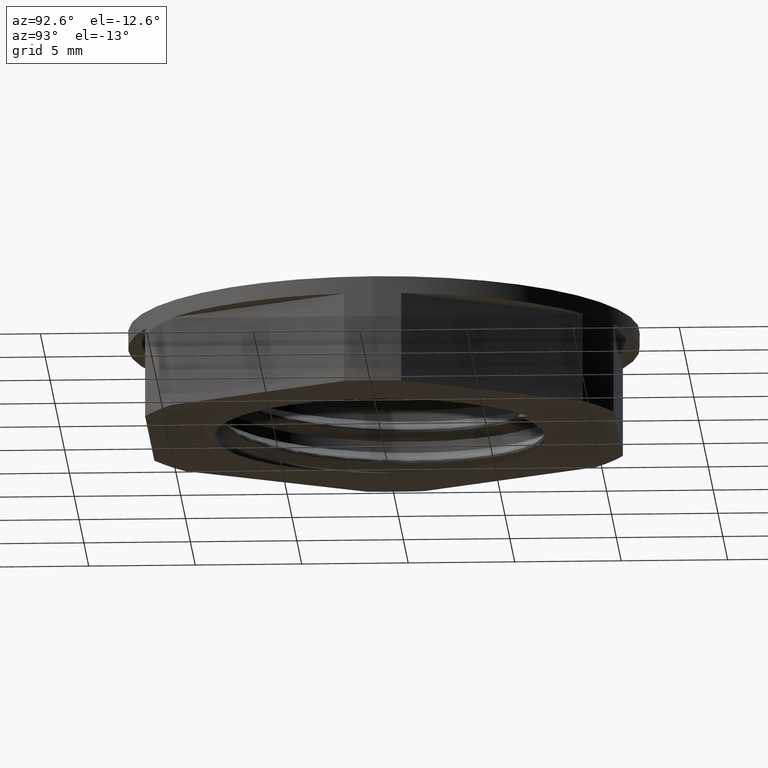
[diagram: clean part render]
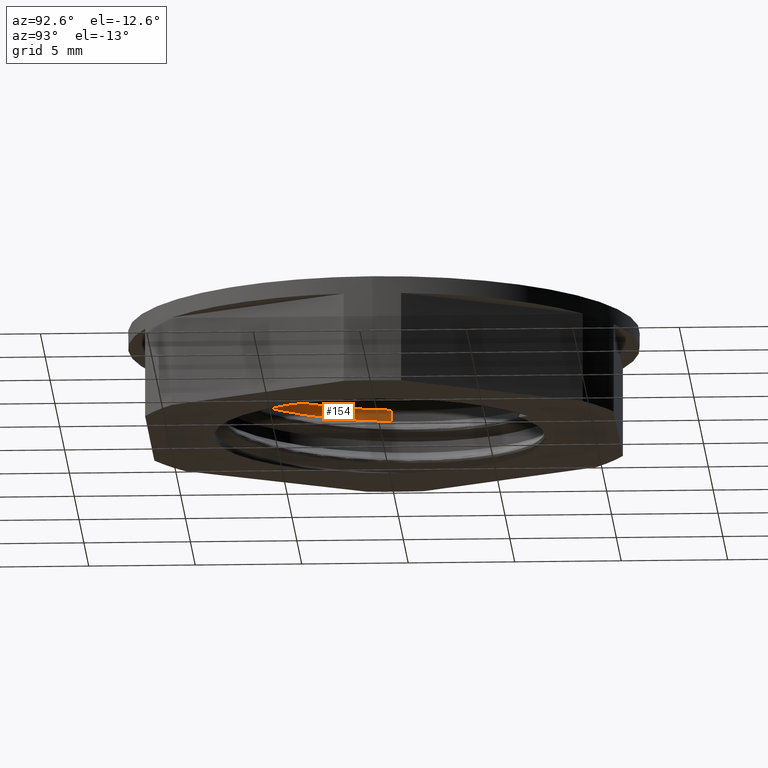
[diagram: same view with one face highlighted and labeled with its STEP entity id]
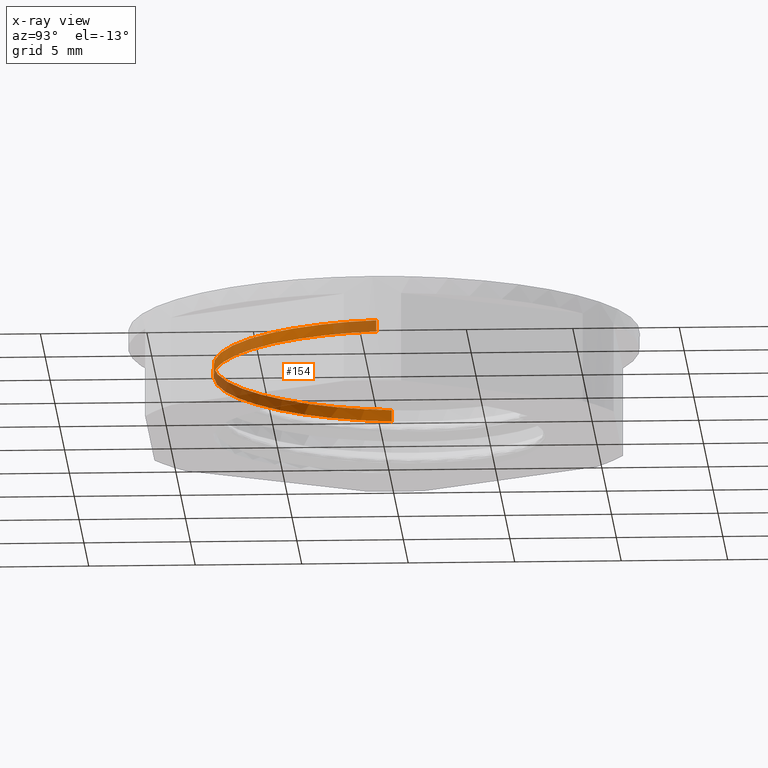
[diagram: x-ray of the same camera — body ghosted, the highlighted face saturated]
A machine part, auxiliary view. The second image highlights one B-rep face of the part: STEP entity #154.
The next image is the same camera in x-ray: the body ghosted, the highlighted face saturated — about 48% of this face is hidden behind the body in this view.
In plain terms, the highlighted cylindrical surface (partial cylindrical patch) has radius 8 mm, axis along (-0, -0, -1).
Its self-contained STEP definition (entity closure, byte-faithful):
#6 = AXIS2_PLACEMENT_3D ( 'NONE', #1061, #1052, #1059 ) ;
#7 = VECTOR ( 'NONE', #1113, 1000.000000000000000 ) ;
#34 = VECTOR ( 'NONE', #419, 1000.000000000000000 ) ;
#154 = ADVANCED_FACE ( 'NONE', ( #1053 ), #1054, .F. ) ;
#160 = EDGE_CURVE ( 'NONE', #2501, #1510, #1112, .T. ) ;
#167 = EDGE_CURVE ( 'NONE', #2504, #2501, #2532, .T. ) ;
#169 = EDGE_CURVE ( 'NONE', #1510, #1509, #2531, .T. ) ;
#173 = EDGE_CURVE ( 'NONE', #2504, #1509, #431, .T. ) ;
#343 = CARTESIAN_POINT ( 'NONE',  ( 7.999999999999998200, -7.631494539278074400E-015, 3.772517976318679800 ) ) ;
#346 = CARTESIAN_POINT ( 'NONE',  ( 7.999999999999998200, -2.143593539448982900, 3.707437213536682700 ) ) ;
#391 = CARTESIAN_POINT ( 'NONE',  ( -7.999999999999998200, 3.366835826152092000E-015, 3.022517976318681600 ) ) ;
#392 = CARTESIAN_POINT ( 'NONE',  ( 2.070552360820166800, -7.727406610312546500, 2.921896021617674100 ) ) ;
#393 = CARTESIAN_POINT ( 'NONE',  ( 6.928203230275509700, -4.000000000000000000, 3.109396021617673300 ) ) ;
#394 = CARTESIAN_POINT ( 'NONE',  ( -8.000000000000000000, -1.053219980699167800, 2.517098779880569700 ) ) ;
#395 = CARTESIAN_POINT ( 'NONE',  ( -1.130244259142797500, -8.585057479767890200, 2.828146021617674100 ) ) ;
#396 = CARTESIAN_POINT ( 'NONE',  ( 6.928203230275508800, -4.000000000000000000, 3.646791597187232900 ) ) ;
#397 = CARTESIAN_POINT ( 'NONE',  ( 5.271348980783127300, -6.869755740857204500, 3.553041597187232900 ) ) ;
#402 = CARTESIAN_POINT ( 'NONE',  ( -6.869755740857203600, -5.271348980783130900, 3.178041597187232900 ) ) ;
#403 = CARTESIAN_POINT ( 'NONE',  ( -7.999999999999998200, -8.978228869738910500E-016, 2.485122400749121900 ) ) ;
#404 = CARTESIAN_POINT ( 'NONE',  ( -7.727406610312546500, -2.070552360820166800, 2.546896021617674100 ) ) ;
#405 = CARTESIAN_POINT ( 'NONE',  ( -1.130244259142797500, -8.585057479767890200, 3.365541597187232900 ) ) ;
#406 = CARTESIAN_POINT ( 'NONE',  ( -6.869755740857202800, -5.271348980783130900, 2.640646021617674100 ) ) ;
#407 = CARTESIAN_POINT ( 'NONE',  ( -7.727406610312546500, -2.070552360820167200, 3.084291597187233800 ) ) ;
#409 = CARTESIAN_POINT ( 'NONE',  ( 5.271348980783128200, -6.869755740857205400, 3.015646021617673700 ) ) ;
#413 = CARTESIAN_POINT ( 'NONE',  ( -8.000000000000000000, -1.053219980699168000, 3.054494355450129400 ) ) ;
#414 = CARTESIAN_POINT ( 'NONE',  ( 8.000000000000000000, 9.797174393178825700E-016, 10.00000000000000000 ) ) ;
#416 = CARTESIAN_POINT ( 'NONE',  ( -3.999999999999999100, -6.928203230275508800, 3.271791597187233300 ) ) ;
#419 = DIRECTION ( 'NONE',  ( -0.0000000000000000000, -0.0000000000000000000, -1.000000000000000000 ) ) ;
#420 = CARTESIAN_POINT ( 'NONE',  ( 8.000000000000000000, -2.143593539448978500, 3.170041637967123900 ) ) ;
#423 = CARTESIAN_POINT ( 'NONE',  ( 2.070552360820166800, -7.727406610312546500, 3.459291597187233300 ) ) ;
#424 = CARTESIAN_POINT ( 'NONE',  ( 7.999999999999998200, 1.571190052204309300E-015, 3.235122400749120200 ) ) ;
#425 = CARTESIAN_POINT ( 'NONE',  ( -3.999999999999999100, -6.928203230275509700, 2.734396021617673700 ) ) ;
#431 = LINE ( 'NONE', #414, #34 ) ;
#1052 = DIRECTION ( 'NONE',  ( -0.0000000000000000000, -0.0000000000000000000, -1.000000000000000000 ) ) ;
#1053 = FACE_OUTER_BOUND ( 'NONE', #1698, .T. ) ;
#1054 = CYLINDRICAL_SURFACE ( 'NONE', #6, 8.000000000000000000 ) ;
#1059 = DIRECTION ( 'NONE',  ( -1.000000000000000000, 0.0000000000000000000, 0.0000000000000000000 ) ) ;
#1061 = CARTESIAN_POINT ( 'NONE',  ( 0.0000000000000000000, 0.0000000000000000000, 10.00000000000000000 ) ) ;
#1070 = CARTESIAN_POINT ( 'NONE',  ( -8.000000000000000000, 0.0000000000000000000, 10.00000000000000000 ) ) ;
#1112 = LINE ( 'NONE', #1070, #7 ) ;
#1113 = DIRECTION ( 'NONE',  ( -0.0000000000000000000, -0.0000000000000000000, -1.000000000000000000 ) ) ;
#1509 = VERTEX_POINT ( 'NONE', #2539 ) ;
#1510 = VERTEX_POINT ( 'NONE', #2546 ) ;
#1531 = ORIENTED_EDGE ( 'NONE', *, *, #169, .F. ) ;
#1548 = ORIENTED_EDGE ( 'NONE', *, *, #173, .T. ) ;
#1558 = ORIENTED_EDGE ( 'NONE', *, *, #167, .F. ) ;
#1577 = ORIENTED_EDGE ( 'NONE', *, *, #160, .F. ) ;
#1698 = EDGE_LOOP ( 'NONE', ( #1558, #1548, #1531, #1577 ) ) ;
#2501 = VERTEX_POINT ( 'NONE', #2609 ) ;
#2504 = VERTEX_POINT ( 'NONE', #2620 ) ;
#2531 =( BOUNDED_CURVE ( )  B_SPLINE_CURVE ( 2, ( #403, #394, #404, #406, #425, #395, #392, #409, #393, #420, #424 ),
 .UNSPECIFIED., .F., .T. ) 
 B_SPLINE_CURVE_WITH_KNOTS ( ( 3, 2, 2, 2, 2, 3 ),
 ( 0.2666188654882716300, 0.2750000000000000200, 0.2999999999999999900, 0.3250000000000000100, 0.3499999999999999800, 0.3666188654882716100 ),
 .UNSPECIFIED. ) 
 CURVE ( )  GEOMETRIC_REPRESENTATION_ITEM ( )  RATIONAL_B_SPLINE_CURVE ( ( 0.9660722070828951000, 0.9744809649152579300, 1.000000000000000000, 0.9238795325112867400, 1.000000000000000000, 0.9238795325112867400, 1.000000000000000000, 0.9238795325112867400, 1.000000000000000000, 0.9493985675960289200, 0.9660722070828951000 ) ) 
 REPRESENTATION_ITEM ( '' )  );
#2532 =( BOUNDED_CURVE ( )  B_SPLINE_CURVE ( 2, ( #343, #346, #396, #397, #423, #405, #416, #402, #407, #413, #391 ),
 .UNSPECIFIED., .F., .T. ) 
 B_SPLINE_CURVE_WITH_KNOTS ( ( 3, 2, 2, 2, 2, 3 ),
 ( 0.4333811345117284400, 0.4499999999999999600, 0.4749999999999999800, 0.5000000000000000000, 0.5250000000000000200, 0.5333811345117284200 ),
 .UNSPECIFIED. ) 
 CURVE ( )  GEOMETRIC_REPRESENTATION_ITEM ( )  RATIONAL_B_SPLINE_CURVE ( ( 0.9660722070828948700, 0.9493985675960290300, 1.000000000000000000, 0.9238795325112867400, 1.000000000000000000, 0.9238795325112867400, 1.000000000000000000, 0.9238795325112867400, 1.000000000000000000, 0.9744809649152578200, 0.9660722070828948700 ) ) 
 REPRESENTATION_ITEM ( '' )  );
#2539 = CARTESIAN_POINT ( 'NONE',  ( 7.999999999999998200, 1.571190052204309300E-015, 3.235122400749120200 ) ) ;
#2546 = CARTESIAN_POINT ( 'NONE',  ( -7.999999999999998200, -8.978228869738910500E-016, 2.485122400749121900 ) ) ;
#2609 = CARTESIAN_POINT ( 'NONE',  ( -7.999999999999998200, 3.366835826152092000E-015, 3.022517976318681600 ) ) ;
#2620 = CARTESIAN_POINT ( 'NONE',  ( 7.999999999999998200, -7.631494539278074400E-015, 3.772517976318679800 ) ) ;